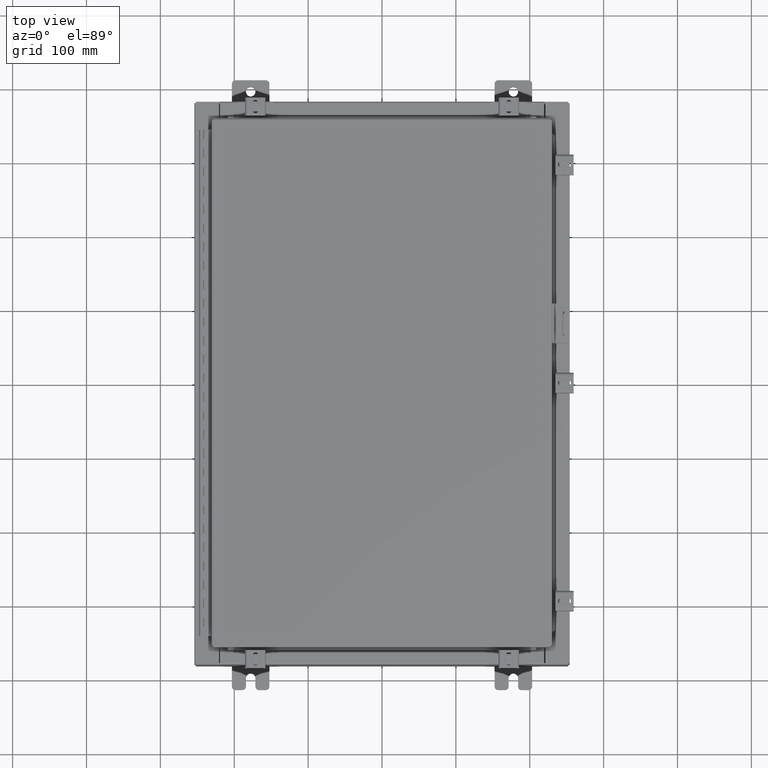
[diagram: clean part render]
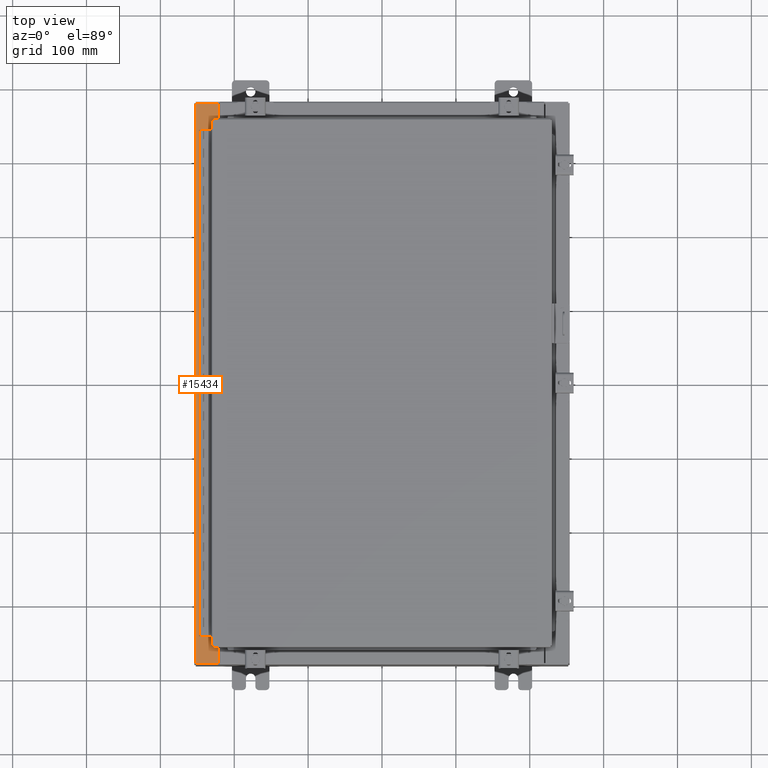
[diagram: same view with one face highlighted and labeled with its STEP entity id]
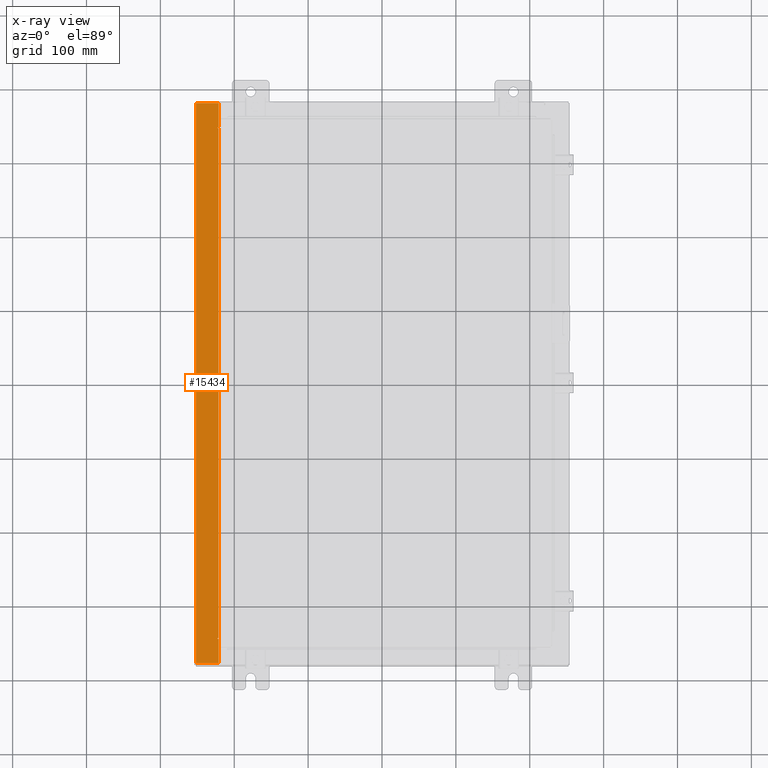
[diagram: x-ray of the same camera — body ghosted, the highlighted face saturated]
A machine part, top view. The second image highlights one B-rep face of the part: STEP entity #15434.
The next image is the same camera in x-ray: the body ghosted, the highlighted face saturated — about 0% of this face is hidden behind the body in this view.
In plain terms, the highlighted planar face has unit normal (0, -0, -1).
Its self-contained STEP definition (entity closure, byte-faithful):
#339 = DIRECTION ( 'NONE',  ( -7.132762385546378400E-015, 3.660694248911932200E-017, 1.000000000000000000 ) ) ;
#516 = DIRECTION ( 'NONE',  ( -1.000000000000000000, -4.379057701015054300E-047, -7.132762385546378400E-015 ) ) ;
#1041 = ORIENTED_EDGE ( 'NONE', *, *, #18215, .T. ) ;
#2553 = CARTESIAN_POINT ( 'NONE',  ( -8.750050000000021200, 13.61242500000000200, 5.925300000000008000 ) ) ;
#2697 = DIRECTION ( 'NONE',  ( -1.000000000000000000, -4.340572780399910900E-014, 0.0000000000000000000 ) ) ;
#2843 = ORIENTED_EDGE ( 'NONE', *, *, #15938, .F. ) ;
#3014 = CARTESIAN_POINT ( 'NONE',  ( -8.750050000000021200, -13.63109999999999500, 5.925300000000008000 ) ) ;
#3317 = CARTESIAN_POINT ( 'NONE',  ( -8.750050000000021200, -13.63109999999999500, 5.925300000000008000 ) ) ;
#3885 = AXIS2_PLACEMENT_3D ( 'NONE', #6646, #339, #4006 ) ;
#4006 = DIRECTION ( 'NONE',  ( 1.000000000000000000, 0.0000000000000000000, 0.0000000000000000000 ) ) ;
#4371 = DIRECTION ( 'NONE',  ( 7.132762385546378400E-015, -3.660694248911932200E-017, -1.000000000000000000 ) ) ;
#4709 = LINE ( 'NONE', #29732, #28073 ) ;
#5509 = ORIENTED_EDGE ( 'NONE', *, *, #18544, .F. ) ;
#5919 = EDGE_CURVE ( 'NONE', #15011, #10369, #18749, .T. ) ;
#6472 = EDGE_CURVE ( 'NONE', #8044, #31778, #36465, .T. ) ;
#6502 = VECTOR ( 'NONE', #2697, 39.37007874015748100 ) ;
#6546 = CARTESIAN_POINT ( 'NONE',  ( -4.252457061909004500E-014, -14.92529999999999600, 5.925300000000070200 ) ) ;
#6646 = CARTESIAN_POINT ( 'NONE',  ( -8.750050000000021200, -13.61242499999999500, 5.925300000000008000 ) ) ;
#6813 = VERTEX_POINT ( 'NONE', #14817 ) ;
#7045 = DIRECTION ( 'NONE',  ( 4.379057701015054300E-047, 1.000000000000000000, -3.660694248911932200E-017 ) ) ;
#7134 = EDGE_CURVE ( 'NONE', #10369, #6813, #19936, .T. ) ;
#7274 = DIRECTION ( 'NONE',  ( -7.132762385546378400E-015, 3.660694248911932200E-017, 1.000000000000000000 ) ) ;
#7301 = CARTESIAN_POINT ( 'NONE',  ( -8.750050000000021200, -13.59374999999999500, 5.925300000000008000 ) ) ;
#7388 = CARTESIAN_POINT ( 'NONE',  ( -8.699700000000019500, 2.169071163307790200E-016, 5.925300000000008000 ) ) ;
#7760 = EDGE_CURVE ( 'NONE', #8522, #30456, #24911, .T. ) ;
#8044 = VERTEX_POINT ( 'NONE', #3014 ) ;
#8238 = AXIS2_PLACEMENT_3D ( 'NONE', #22218, #4371, #29701 ) ;
#8522 = VERTEX_POINT ( 'NONE', #28447 ) ;
#9050 = DIRECTION ( 'NONE',  ( 1.000000000000000000, 0.0000000000000000000, 0.0000000000000000000 ) ) ;
#10318 = CIRCLE ( 'NONE', #3885, 0.01867499999999949400 ) ;
#10369 = VERTEX_POINT ( 'NONE', #29636 ) ;
#10837 = FACE_OUTER_BOUND ( 'NONE', #37645, .T. ) ;
#11134 = CARTESIAN_POINT ( 'NONE',  ( -9.912300000000019700, 14.92530000000000500, 5.925299999999999100 ) ) ;
#11361 = CARTESIAN_POINT ( 'NONE',  ( -4.252457061909003200E-014, 14.92530000000000500, 5.925300000000069300 ) ) ;
#11418 = LINE ( 'NONE', #29623, #6502 ) ;
#11745 = ORIENTED_EDGE ( 'NONE', *, *, #7760, .F. ) ;
#12008 = CARTESIAN_POINT ( 'NONE',  ( -8.712700000000021200, 13.59375000000000400, 5.925300000000008000 ) ) ;
#12181 = LINE ( 'NONE', #12008, #26820 ) ;
#12311 = EDGE_CURVE ( 'NONE', #30456, #17501, #36027, .T. ) ;
#13034 = VECTOR ( 'NONE', #9050, 39.37007874015748100 ) ;
#13836 = LINE ( 'NONE', #7388, #27852 ) ;
#13905 = ORIENTED_EDGE ( 'NONE', *, *, #6472, .F. ) ;
#14817 = CARTESIAN_POINT ( 'NONE',  ( -9.912300000000017900, 14.92530000000000500, 5.925299999999999100 ) ) ;
#14829 = DIRECTION ( 'NONE',  ( -7.321388497823866900E-017, 1.000000000000000000, -3.660694248911984600E-017 ) ) ;
#14976 = DIRECTION ( 'NONE',  ( -0.0000000000000000000, -1.000000000000000000, -0.0000000000000000000 ) ) ;
#15011 = VERTEX_POINT ( 'NONE', #19505 ) ;
#15407 = VECTOR ( 'NONE', #516, 39.37007874015748100 ) ;
#15434 = ADVANCED_FACE ( 'NONE', ( #10837 ), #21521, .F. ) ;
#15938 = EDGE_CURVE ( 'NONE', #15011, #8522, #11418, .T. ) ;
#16576 = ORIENTED_EDGE ( 'NONE', *, *, #5919, .T. ) ;
#17501 = VERTEX_POINT ( 'NONE', #22898 ) ;
#17783 = CARTESIAN_POINT ( 'NONE',  ( -8.712700000000021200, -13.59374999999999500, 5.925300000000008000 ) ) ;
#18215 = EDGE_CURVE ( 'NONE', #36161, #31778, #13836, .T. ) ;
#18544 = EDGE_CURVE ( 'NONE', #36547, #8044, #10318, .T. ) ;
#18749 = LINE ( 'NONE', #22927, #36824 ) ;
#19262 = DIRECTION ( 'NONE',  ( 4.379057701015054300E-047, 1.000000000000000000, -3.660694248911932200E-017 ) ) ;
#19505 = CARTESIAN_POINT ( 'NONE',  ( -8.699700000000019500, 13.63110000000000400, 5.925300000000008000 ) ) ;
#19936 = LINE ( 'NONE', #11361, #15407 ) ;
#21160 = ORIENTED_EDGE ( 'NONE', *, *, #7134, .T. ) ;
#21473 = EDGE_CURVE ( 'NONE', #22645, #6813, #22286, .T. ) ;
#21521 = PLANE ( 'NONE',  #8238 ) ;
#21736 = ORIENTED_EDGE ( 'NONE', *, *, #21473, .F. ) ;
#22218 = CARTESIAN_POINT ( 'NONE',  ( -4.252457061909003800E-014, 2.169071163307812900E-016, 5.925300000000070200 ) ) ;
#22223 = VECTOR ( 'NONE', #31593, 39.37007874015748100 ) ;
#22286 = LINE ( 'NONE', #11134, #29053 ) ;
#22431 = AXIS2_PLACEMENT_3D ( 'NONE', #2553, #7274, #32246 ) ;
#22645 = VERTEX_POINT ( 'NONE', #29853 ) ;
#22898 = CARTESIAN_POINT ( 'NONE',  ( -8.712700000000021200, 13.59375000000000200, 5.925300000000008000 ) ) ;
#22915 = VERTEX_POINT ( 'NONE', #17783 ) ;
#22927 = CARTESIAN_POINT ( 'NONE',  ( -8.699700000000019500, 2.169071163307790200E-016, 5.925300000000008000 ) ) ;
#23958 = CARTESIAN_POINT ( 'NONE',  ( -8.750050000000021200, 13.59375000000000200, 5.925300000000008000 ) ) ;
#24699 = CARTESIAN_POINT ( 'NONE',  ( -8.699700000000019500, -13.63109999999999600, 5.925300000000008000 ) ) ;
#24911 = CIRCLE ( 'NONE', #22431, 0.01867499999999949400 ) ;
#25756 = EDGE_CURVE ( 'NONE', #22645, #36161, #29136, .T. ) ;
#26820 = VECTOR ( 'NONE', #14976, 39.37007874015748100 ) ;
#26954 = CARTESIAN_POINT ( 'NONE',  ( -8.750050000000021200, 13.59375000000000200, 5.925300000000008000 ) ) ;
#27852 = VECTOR ( 'NONE', #7045, 39.37007874015748100 ) ;
#28073 = VECTOR ( 'NONE', #32309, 39.37007874015748100 ) ;
#28447 = CARTESIAN_POINT ( 'NONE',  ( -8.750050000000021200, 13.63110000000000200, 5.925300000000007100 ) ) ;
#29053 = VECTOR ( 'NONE', #14829, 39.37007874015748100 ) ;
#29136 = LINE ( 'NONE', #6546, #31163 ) ;
#29623 = CARTESIAN_POINT ( 'NONE',  ( -8.699700000000019500, 13.63110000000000400, 5.925300000000008000 ) ) ;
#29636 = CARTESIAN_POINT ( 'NONE',  ( -8.699700000000019500, 14.92530000000000500, 5.925300000000007100 ) ) ;
#29701 = DIRECTION ( 'NONE',  ( -1.000000000000000000, 0.0000000000000000000, -7.132762385546378400E-015 ) ) ;
#29732 = CARTESIAN_POINT ( 'NONE',  ( -8.712700000000021200, -13.59374999999999500, 5.925300000000008000 ) ) ;
#29853 = CARTESIAN_POINT ( 'NONE',  ( -9.912300000000017900, -14.92529999999999600, 5.925299999999999100 ) ) ;
#30456 = VERTEX_POINT ( 'NONE', #26954 ) ;
#30761 = ORIENTED_EDGE ( 'NONE', *, *, #31025, .F. ) ;
#31025 = EDGE_CURVE ( 'NONE', #22915, #36547, #4709, .T. ) ;
#31163 = VECTOR ( 'NONE', #32550, 39.37007874015748100 ) ;
#31593 = DIRECTION ( 'NONE',  ( 1.000000000000000000, 0.0000000000000000000, 0.0000000000000000000 ) ) ;
#31778 = VERTEX_POINT ( 'NONE', #24699 ) ;
#32246 = DIRECTION ( 'NONE',  ( 1.000000000000000000, 0.0000000000000000000, 0.0000000000000000000 ) ) ;
#32309 = DIRECTION ( 'NONE',  ( -1.000000000000000000, 0.0000000000000000000, 0.0000000000000000000 ) ) ;
#32413 = ORIENTED_EDGE ( 'NONE', *, *, #25756, .T. ) ;
#32550 = DIRECTION ( 'NONE',  ( 1.000000000000000000, 4.379057701015054300E-047, 7.132762385546378400E-015 ) ) ;
#34625 = ORIENTED_EDGE ( 'NONE', *, *, #12311, .F. ) ;
#34676 = CARTESIAN_POINT ( 'NONE',  ( -8.699700000000019500, -14.92529999999999600, 5.925300000000008000 ) ) ;
#36027 = LINE ( 'NONE', #23958, #22223 ) ;
#36161 = VERTEX_POINT ( 'NONE', #34676 ) ;
#36296 = EDGE_CURVE ( 'NONE', #17501, #22915, #12181, .T. ) ;
#36465 = LINE ( 'NONE', #3317, #13034 ) ;
#36547 = VERTEX_POINT ( 'NONE', #7301 ) ;
#36824 = VECTOR ( 'NONE', #19262, 39.37007874015748100 ) ;
#37376 = ORIENTED_EDGE ( 'NONE', *, *, #36296, .F. ) ;
#37645 = EDGE_LOOP ( 'NONE', ( #2843, #16576, #21160, #21736, #32413, #1041, #13905, #5509, #30761, #37376, #34625, #11745 ) ) ;